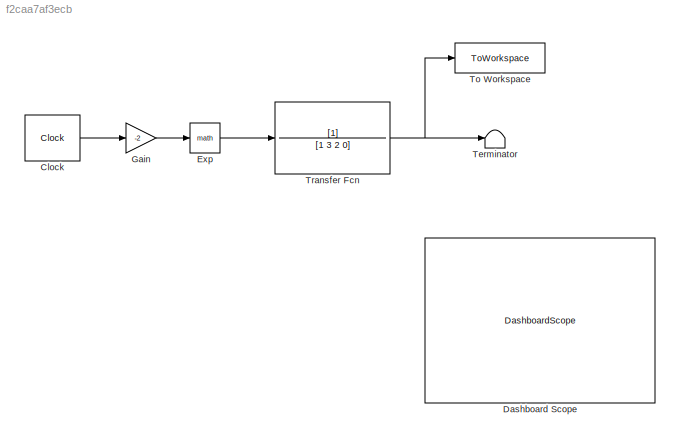
MODEL slx_f2caa7af3ecb
KIND model
CONFIG AbsTol = auto
CONFIG EnableMultiTasking = off
CONFIG FixedStep = auto
CONFIG MaxStep = auto
CONFIG MinStep = auto
CONFIG RelTol = 1e-3
CONFIG SampleTimeConstraint = Unconstrained
CONFIG Solver = VariableStepAuto
CONFIG SolverName = VariableStepAuto
CONFIG StartTime = 0.0
CONFIG StopTime = 10.0
BLOCK [Clock] Clock
  DisplayTime = on
BLOCK [DashboardScope] Dashboard Scope
BLOCK [Math] Exp
  Ports = [1, 1]
BLOCK [Gain] Gain
  Gain = -2
BLOCK [Terminator] Terminator
BLOCK [ToWorkspace] To Workspace
  FixptAsFi = on
  MaxDataPoints = inf
  Ports = [1]
  SampleTime = -1
  SaveFormat = Timeseries
  VariableName = ZeroStateOutput
BLOCK [TransferFcn] Transfer Fcn
  Denominator = [1 3 2 0]
LINE Clock:1 -> Gain:1
LINE Exp:1 -> Transfer Fcn:1
LINE Gain:1 -> Exp:1
NET Transfer Fcn:1 -> Terminator:1, To Workspace:1
note: NET lines group one-source signal fan-out (src -> all destinations, sorted); 1:1 wires keep LINE
